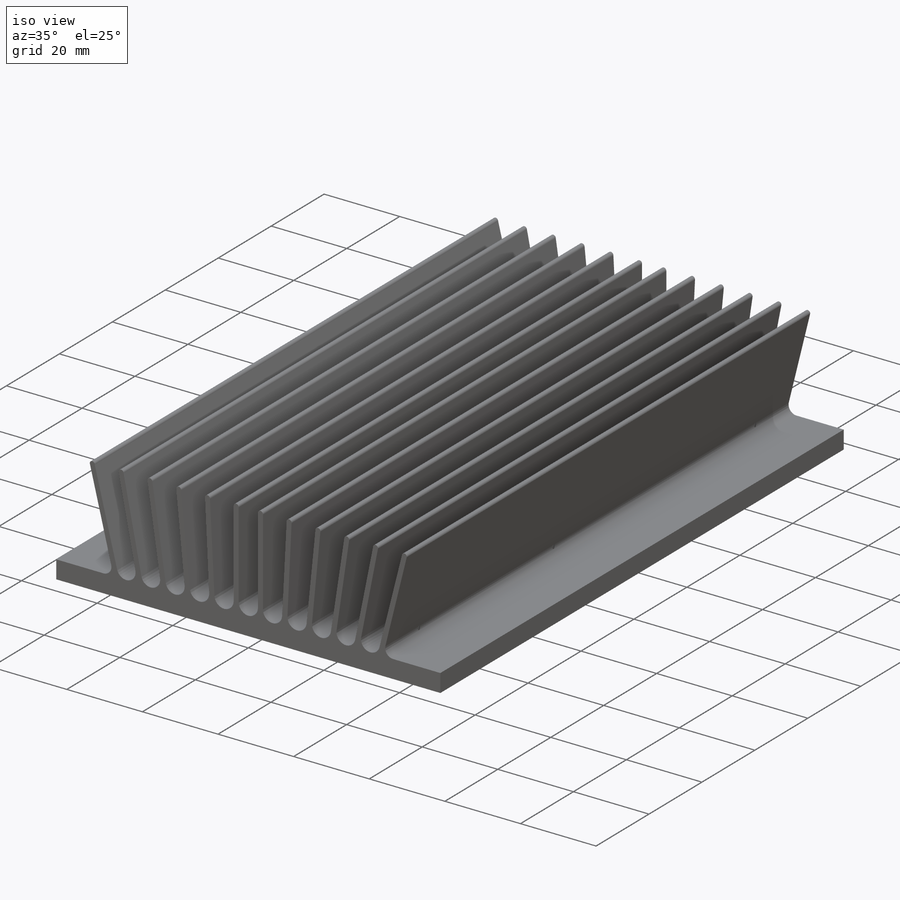
[diagram: iso view]
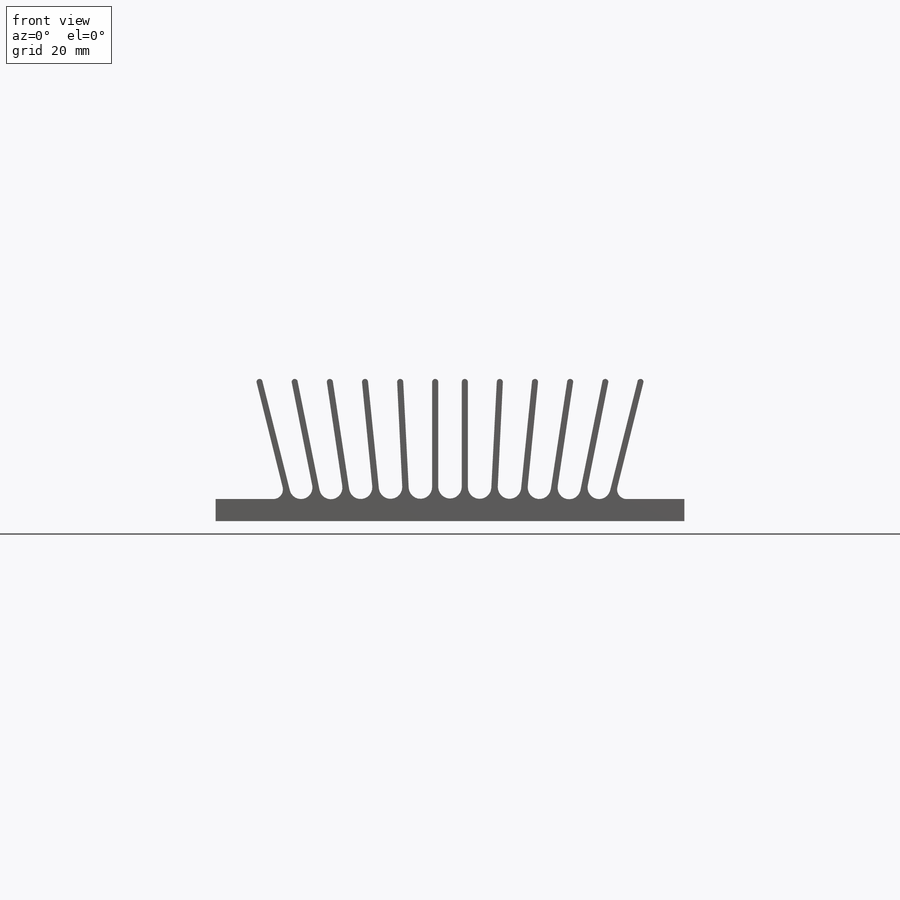
[diagram: front view]
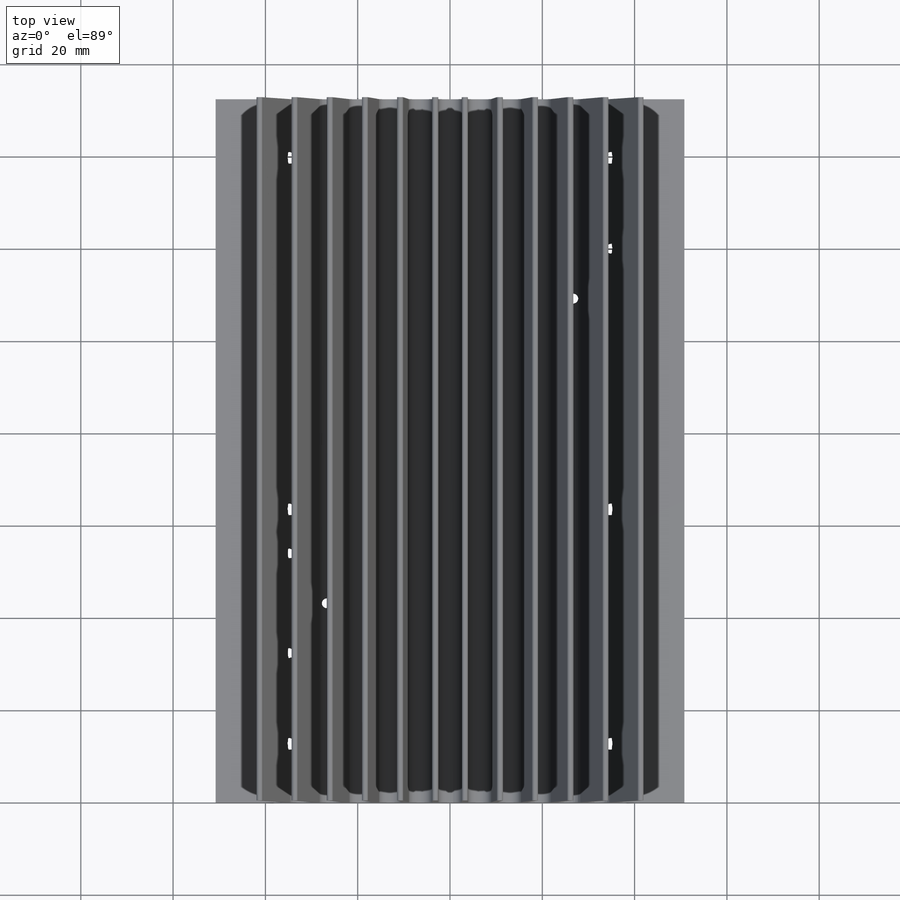
[diagram: top view]
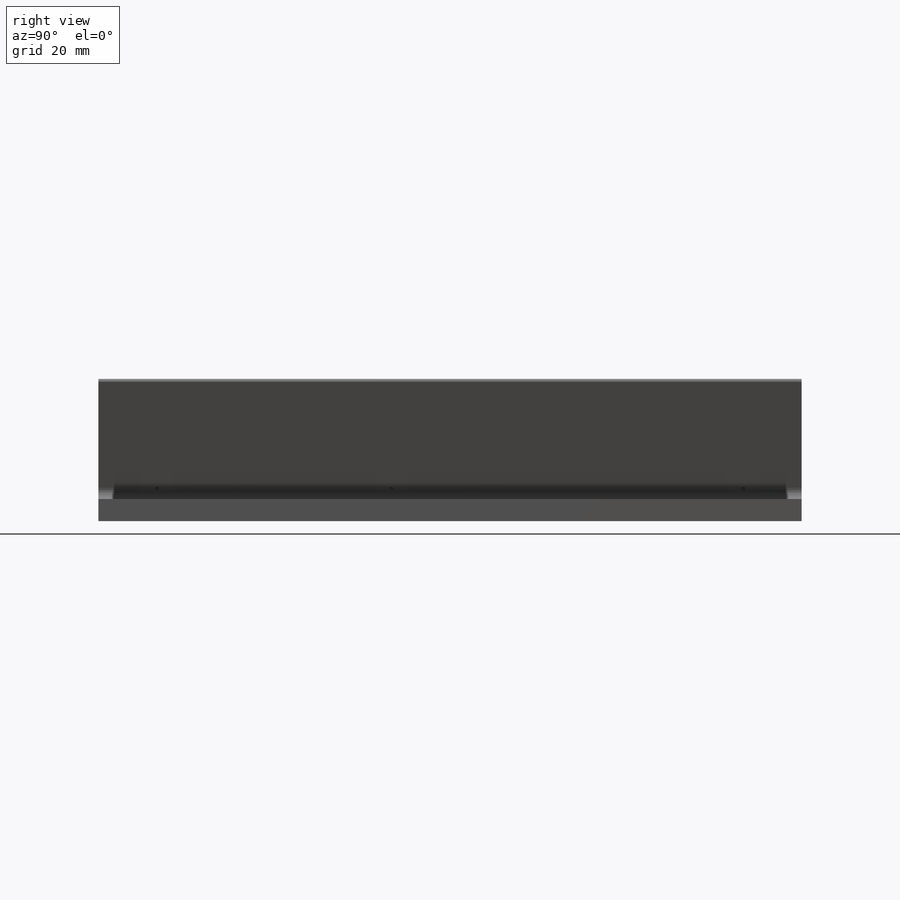
[diagram: right view]
SOLIDWORKS PART (.sldprt)
format: sldprt  version: not decoded by parser v0  size: 632,320 bytes
history: native  units: mm
features: pattern_linear x12, sketch x9, hole x4, material x1, extrude x1, mirror x1, thread x1 (+11 scaffold rows collapsed)
feature tree (40):
  scaffold x11  (default folders/planes/origin — collapsed)
  material  "Material <not specified>"
  sketch  "Sketch1"  dims[c1.D14=1.3208mm c1.D15=1.3208mm c1.D16=1.3208mm c1.D17=1.3208mm c1.D18=1.3208mm c1.D19=1.3208mm c1.D20=1.397mm c1.D21=1.397mm c1.D22=1.397mm c1.D23=1.397mm c1.D24=1.397mm c1.D25=1.397mm c1.D1=4.7752mm c1.D2=4.7752mm c1.D3=50.8mm c1.D4=101.6mm c1.D5=15.875mm c1.D6=15.875mm c1.D7=30.1498mm c1.D8=82.55mm c1.D9=41.275mm c2.D8=41.275mm c2.D9=34.925mm c2.D6=34.925mm c2.D2=30.1498mm c3.D9=6.35mm c3.D10=6.35mm c3.D11=6.35mm c3.D12=6.35mm c3.D13=6.35mm c3.D14=6.35mm c4.D9=2.54mm c4.D10=2.54mm c4.D11=2.54mm c5.D9=5.08mm c5.D10=5.08mm c5.D11=5.08mm c5.D12=5.08mm c5.D13=5.08mm c5.D14=3.302mm c6.D9=7.62mm c6.D10=7.62mm c6.D11=7.62mm c6.D12=7.62mm c6.D13=7.62mm c7.D9=6.35mm c7.D10=6.35mm c7.D11=6.35mm c7.D12=6.35mm c7.D13=6.35mm]
  extrude  "Base-Extrude"  Depth=152.4mm
  mirror  "Mirror1"
  hole  "#4-40 Tapped Hole1"  Diameter=2.2606mm Depth=7.9502mm
  sketch  "3DSketch1"  dims[D1=20.32mm D2=19.05mm]
  sketch  "Sketch6"  dims[hole-wizard template sketch: 47 standard entries collapsed; hole parameters kept: c15.Tap Drill Depth=7.9502mm c15.D3=~14.816244mm c15.Drill Angle=118.0deg]
  thread  "Hole Thread1"  Diameter=4.572mm  [1 undecoded]
  pattern_linear  "LPattern10"  Count1=2 Count2=2 Spacing1=60.96mm Spacing2=114.3mm
  hole  "#6-32 Tapped Hole1"  Diameter=2.7051mm Depth=7.9502mm
  sketch  "3DSketch2"  dims[D1=15.875mm D2=69.85mm D3=12.7mm D4=12.7mm D5=15.875mm D6=69.85mm D7=76.2mm D8=76.2mm D9=127.0mm D10=15.875mm D11=69.85mm D12=127.0mm]
  sketch  "Sketch7"  dims[hole-wizard template sketch: 47 standard entries collapsed; hole parameters kept: c15.Tap Drill Depth=7.9502mm c15.D3=~14.816244mm c15.Drill Angle=118.0deg]
  pattern_linear  "Hole Thread2"  Spacing1=4.7752mm Spacing2=3.5052mm  [1 undecoded]
  pattern_linear  "Hole Thread3"  Spacing1=4.7752mm Spacing2=3.5052mm  [1 undecoded]
  pattern_linear  "Hole Thread4"  Spacing1=4.7752mm Spacing2=3.5052mm  [1 undecoded]
  pattern_linear  "Hole Thread5"  Spacing1=4.7752mm Spacing2=3.5052mm  [1 undecoded]
  pattern_linear  "Hole Thread6"  Spacing1=4.7752mm Spacing2=3.5052mm  [1 undecoded]
  pattern_linear  "Hole Thread7"  Spacing1=4.7752mm Spacing2=3.5052mm  [1 undecoded]
  hole  "#4-40 Tapped Hole2"  Diameter=2.2606mm Depth=7.9502mm
  sketch  "3DSketch4"  dims[c1.D1=109.22mm c1.D2=~46.496436mm c1.D3=43.18mm c2.D2=43.18mm c2.D3=32.385mm c2.D4=120.015mm c2.D5=15.875mm c2.D6=85.725mm c2.D7=77.47mm c2.D8=24.13mm]
  sketch  "Sketch10"  dims[hole-wizard template sketch: 47 standard entries collapsed; hole parameters kept: c15.Tap Drill Depth=7.9502mm c15.D3=~14.816244mm c15.Drill Angle=118.0deg]
  pattern_linear  "Hole Thread8"  Spacing1=4.7752mm Spacing2=2.8448mm  [1 undecoded]
  pattern_linear  "Hole Thread9"  Spacing1=4.7752mm Spacing2=2.8448mm  [1 undecoded]
  pattern_linear  "Hole Thread10"  Spacing1=4.7752mm Spacing2=2.8448mm  [1 undecoded]
  pattern_linear  "Hole Thread11"  Spacing1=4.7752mm Spacing2=2.8448mm  [1 undecoded]
  hole  "#4-40 Tapped Hole5"  Diameter=2.2606mm Depth=7.9502mm
  sketch  "Sketch17"  dims[D1=15.875mm D2=98.425mm]
  sketch  "Sketch16"  dims[hole-wizard template sketch: 47 standard entries collapsed; hole parameters kept: c15.Tap Drill Depth=7.9502mm c15.D3=~14.816244mm c15.Drill Angle=118.0deg]
  pattern_linear  "Hole Thread14"  Spacing1=4.7752mm Spacing2=2.8448mm  [1 undecoded]
decode coverage: 27 of 28 modeling features carry decoded parameters
note: ~ marks probable driven/reference dimensions
note: 12 parameter values undecoded
summary: Diameter pulled from absorbed wizard sketch
note: suppression state not decoded; provenance and decode notes live in map.json
